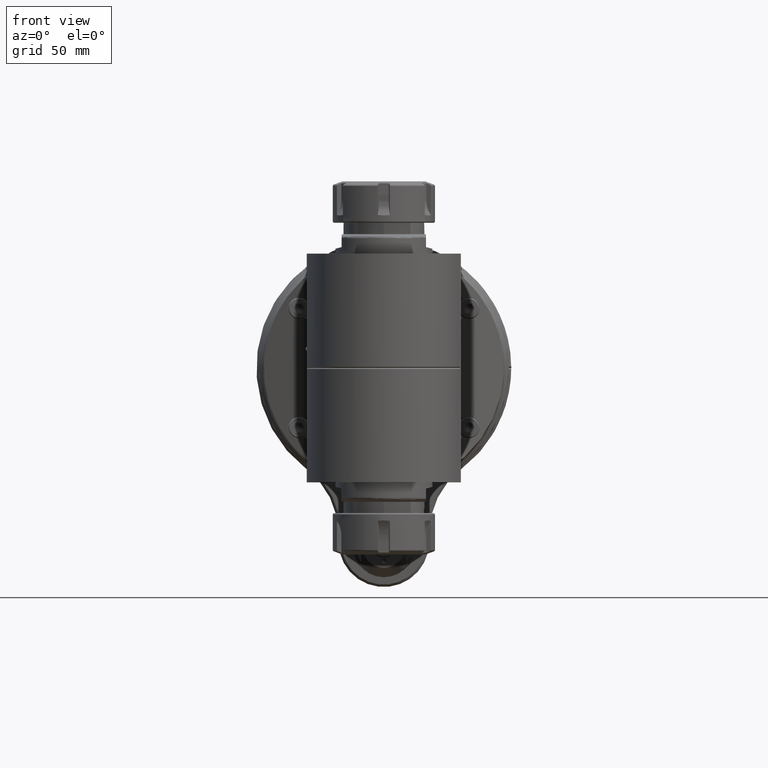
[diagram: clean part render]
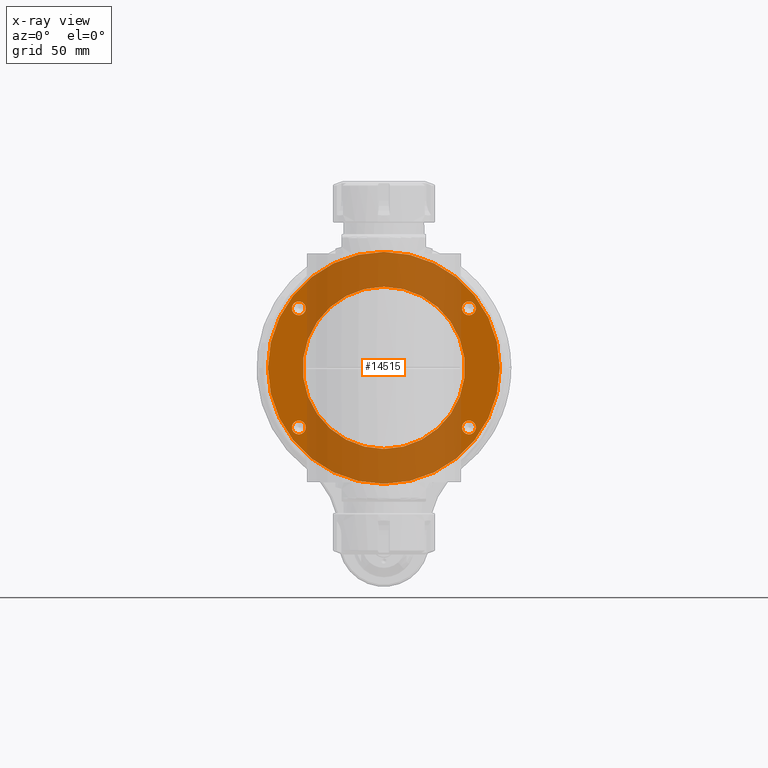
[diagram: x-ray — body ghosted, one internal face saturated and labeled with its STEP entity id]
A machine part, front view, then the same camera in x-ray: the body is ghosted and one INTERNAL B-rep face — a face not visible from any outside direction — is saturated and labeled: STEP entity #14515.
In plain terms, the highlighted planar face has unit normal (-0, 1, 0).
Its self-contained STEP definition (entity closure, byte-faithful):
#2918=FACE_BOUND('',#4288,.T.);
#2919=FACE_BOUND('',#4289,.T.);
#2920=FACE_BOUND('',#4290,.T.);
#2921=FACE_BOUND('',#4291,.T.);
#2922=FACE_BOUND('',#4292,.T.);
#3376=FACE_OUTER_BOUND('',#4287,.T.);
#4287=EDGE_LOOP('',(#11280));
#4288=EDGE_LOOP('',(#11281));
#4289=EDGE_LOOP('',(#11282));
#4290=EDGE_LOOP('',(#11283));
#4291=EDGE_LOOP('',(#11284));
#4292=EDGE_LOOP('',(#11285));
#5170=CIRCLE('',#15827,71.5);
#5171=CIRCLE('',#15829,4.25);
#5172=CIRCLE('',#15830,4.25);
#5173=CIRCLE('',#15831,4.25);
#5174=CIRCLE('',#15832,4.25);
#5175=CIRCLE('',#15833,50.);
#6301=VERTEX_POINT('',#24520);
#6302=VERTEX_POINT('',#24524);
#6303=VERTEX_POINT('',#24526);
#6304=VERTEX_POINT('',#24528);
#6305=VERTEX_POINT('',#24530);
#6306=VERTEX_POINT('',#24532);
#8078=EDGE_CURVE('',#6301,#6301,#5170,.T.);
#8079=EDGE_CURVE('',#6302,#6302,#5171,.T.);
#8080=EDGE_CURVE('',#6303,#6303,#5172,.T.);
#8081=EDGE_CURVE('',#6304,#6304,#5173,.T.);
#8082=EDGE_CURVE('',#6305,#6305,#5174,.T.);
#8083=EDGE_CURVE('',#6306,#6306,#5175,.T.);
#11280=ORIENTED_EDGE('',*,*,#8078,.T.);
#11281=ORIENTED_EDGE('',*,*,#8079,.T.);
#11282=ORIENTED_EDGE('',*,*,#8080,.T.);
#11283=ORIENTED_EDGE('',*,*,#8081,.T.);
#11284=ORIENTED_EDGE('',*,*,#8082,.T.);
#11285=ORIENTED_EDGE('',*,*,#8083,.T.);
#13909=PLANE('',#15828);
#14515=ADVANCED_FACE('',(#3376,#2918,#2919,#2920,#2921,#2922),#13909,.T.);
#15827=AXIS2_PLACEMENT_3D('',#24522,#18725,#18726);
#15828=AXIS2_PLACEMENT_3D('',#24523,#18727,#18728);
#15829=AXIS2_PLACEMENT_3D('',#24525,#18729,#18730);
#15830=AXIS2_PLACEMENT_3D('',#24527,#18731,#18732);
#15831=AXIS2_PLACEMENT_3D('',#24529,#18733,#18734);
#15832=AXIS2_PLACEMENT_3D('',#24531,#18735,#18736);
#15833=AXIS2_PLACEMENT_3D('',#24533,#18737,#18738);
#18725=DIRECTION('center_axis',(-1.,0.,0.));
#18726=DIRECTION('ref_axis',(0.,-0.68634858502462,0.727272727272721));
#18727=DIRECTION('center_axis',(-1.,0.,0.));
#18728=DIRECTION('ref_axis',(0.,1.,0.));
#18729=DIRECTION('center_axis',(1.,0.,0.));
#18730=DIRECTION('ref_axis',(0.,-1.,0.));
#18731=DIRECTION('center_axis',(1.,0.,0.));
#18732=DIRECTION('ref_axis',(0.,1.,0.));
#18733=DIRECTION('center_axis',(1.,0.,0.));
#18734=DIRECTION('ref_axis',(0.,1.,0.));
#18735=DIRECTION('center_axis',(1.,0.,0.));
#18736=DIRECTION('ref_axis',(0.,1.,0.));
#18737=DIRECTION('center_axis',(1.,0.,0.));
#18738=DIRECTION('ref_axis',(0.,-1.,0.));
#24520=CARTESIAN_POINT('',(-27.0000000000006,71.500000000001,8.75622461390369E-15));
#24522=CARTESIAN_POINT('Origin',(-27.,0.,0.));
#24523=CARTESIAN_POINT('Origin',(-27.,60.75,0.));
#24524=CARTESIAN_POINT('',(-27.,-40.95889192647,52.4257308345));
#24525=CARTESIAN_POINT('Origin',(-27.,-36.70889192647,52.4257308345));
#24526=CARTESIAN_POINT('',(-27.,32.45889192647,52.4257308345));
#24527=CARTESIAN_POINT('Origin',(-27.,36.70889192647,52.4257308345));
#24528=CARTESIAN_POINT('',(-27.,-40.95889192647,-52.4257308345));
#24529=CARTESIAN_POINT('Origin',(-27.,-36.70889192647,-52.4257308345));
#24530=CARTESIAN_POINT('',(-27.,32.45889192647,-52.4257308345));
#24531=CARTESIAN_POINT('Origin',(-27.,36.70889192647,-52.4257308345));
#24532=CARTESIAN_POINT('',(-27.,-50.,6.12323399573677E-15));
#24533=CARTESIAN_POINT('Origin',(-27.,0.,0.));